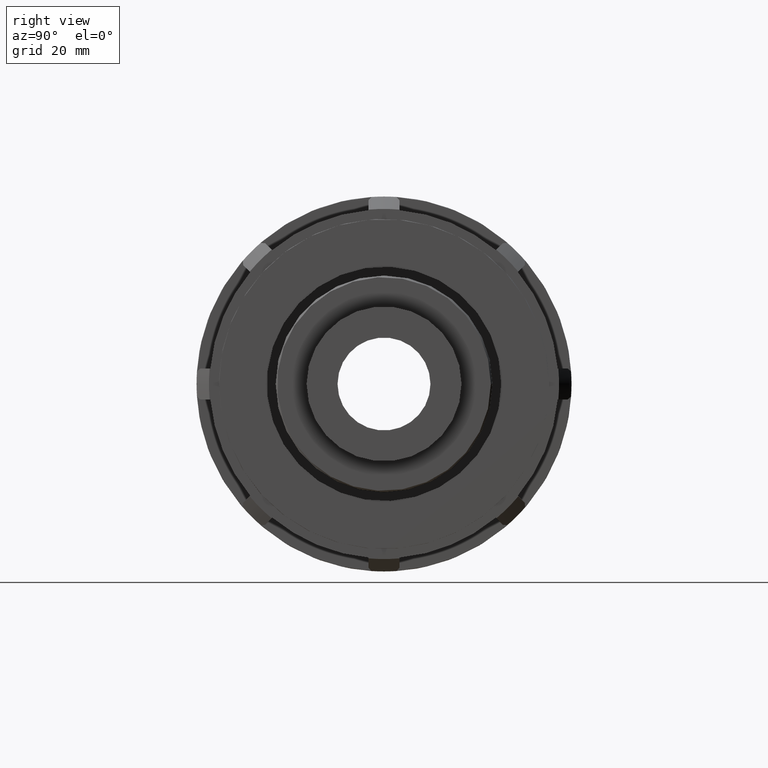
[diagram: clean part render]
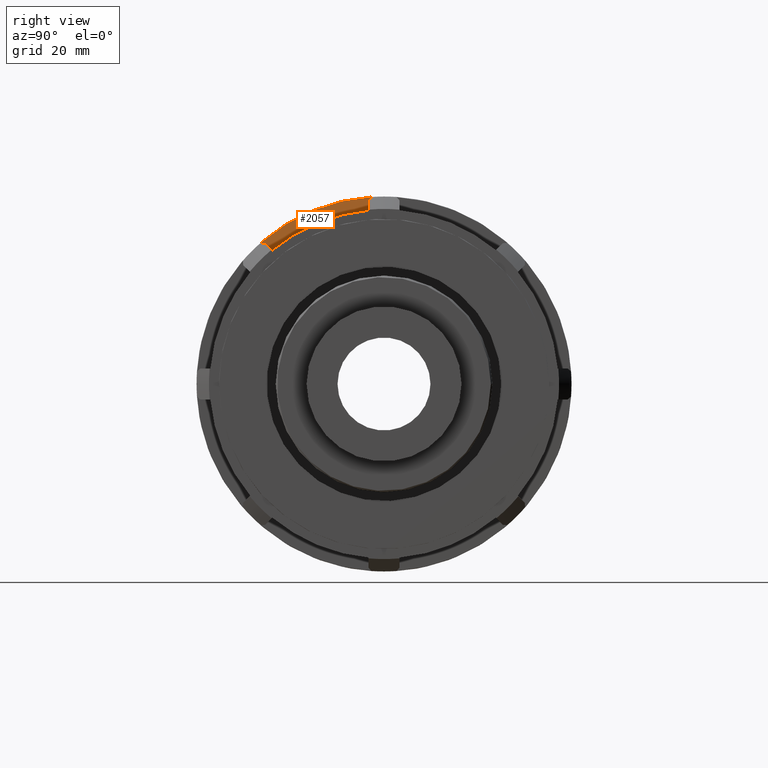
[diagram: same view with one face highlighted and labeled with its STEP entity id]
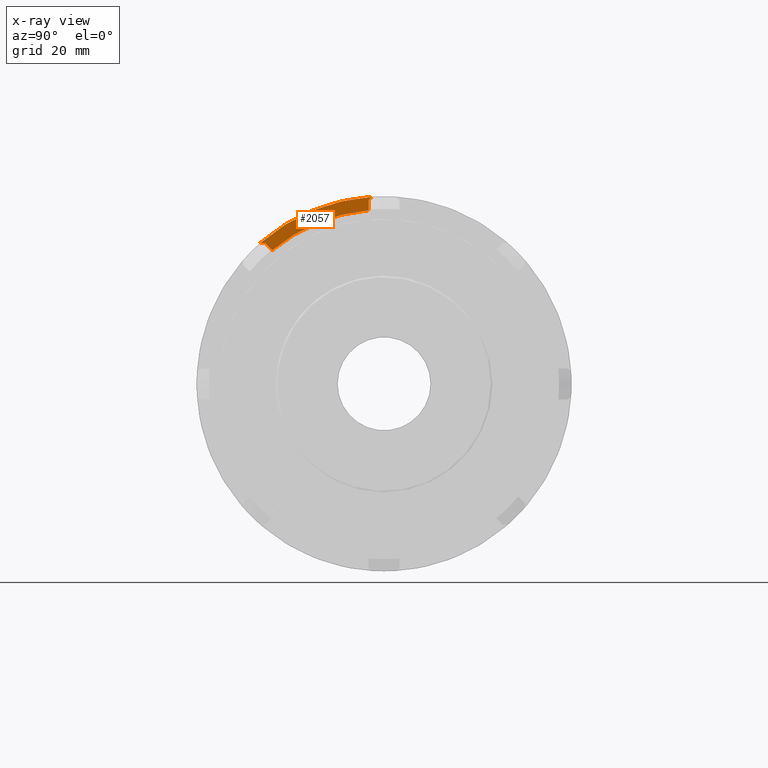
[diagram: x-ray of the same camera — body ghosted, the highlighted face saturated]
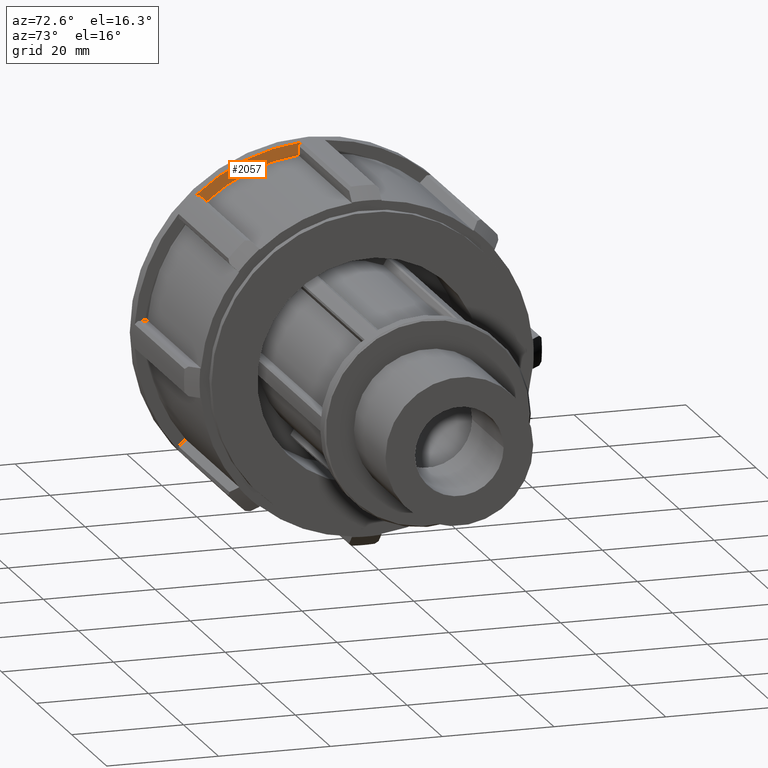
[diagram: same view with one face highlighted and labeled with its STEP entity id]
A machine part, right view. The second image highlights one B-rep face of the part: STEP entity #2057.
The next image is the same camera in x-ray: the body ghosted, the highlighted face saturated — about 0% of this face is hidden behind the body in this view.
A second angle (auxiliary view) of the same face is appended — the face is thin or edge-on in the first view.
In plain terms, the highlighted planar face has unit normal (1, 0, 0).
Its self-contained STEP definition (entity closure, byte-faithful):
#126=CIRCLE('',#2186,32.);
#135=CIRCLE('',#2229,29.76);
#274=FACE_OUTER_BOUND('',#396,.T.);
#396=EDGE_LOOP('',(#1738,#1739,#1740,#1741,#1742,#1743));
#592=LINE('',#3379,#772);
#600=LINE('',#3409,#780);
#619=LINE('',#3450,#799);
#620=LINE('',#3451,#800);
#772=VECTOR('',#2683,0.775182570537227);
#780=VECTOR('',#2701,1.71944788489031);
#799=VECTOR('',#2736,1.71944788489031);
#800=VECTOR('',#2737,0.775182570537229);
#919=VERTEX_POINT('',#3189);
#920=VERTEX_POINT('',#3191);
#969=VERTEX_POINT('',#3377);
#977=VERTEX_POINT('',#3407);
#990=VERTEX_POINT('',#3447);
#991=VERTEX_POINT('',#3449);
#1162=EDGE_CURVE('',#920,#919,#126,.T.);
#1235=EDGE_CURVE('',#969,#919,#592,.F.);
#1247=EDGE_CURVE('',#969,#977,#600,.T.);
#1266=EDGE_CURVE('',#990,#977,#135,.T.);
#1267=EDGE_CURVE('',#990,#991,#619,.T.);
#1268=EDGE_CURVE('',#920,#991,#620,.F.);
#1738=ORIENTED_EDGE('',*,*,#1247,.T.);
#1739=ORIENTED_EDGE('',*,*,#1266,.F.);
#1740=ORIENTED_EDGE('',*,*,#1267,.T.);
#1741=ORIENTED_EDGE('',*,*,#1268,.F.);
#1742=ORIENTED_EDGE('',*,*,#1162,.T.);
#1743=ORIENTED_EDGE('',*,*,#1235,.F.);
#1960=PLANE('',#2228);
#2057=ADVANCED_FACE('',(#274),#1960,.T.);
#2186=AXIS2_PLACEMENT_3D('',#3192,#2577,#2578);
#2228=AXIS2_PLACEMENT_3D('',#3446,#2732,#2733);
#2229=AXIS2_PLACEMENT_3D('',#3448,#2734,#2735);
#2577=DIRECTION('center_axis',(1.,0.,0.));
#2578=DIRECTION('ref_axis',(0.,0.,-1.));
#2683=DIRECTION('',(0.,0.999307052321563,-0.0372211657580506));
#2701=DIRECTION('',(0.,0.707106781186548,-0.707106781186547));
#2732=DIRECTION('center_axis',(1.,0.,0.));
#2733=DIRECTION('ref_axis',(0.,0.,-1.));
#2734=DIRECTION('center_axis',(1.,0.,0.));
#2735=DIRECTION('ref_axis',(0.,0.,-1.));
#2736=DIRECTION('',(0.,-1.43998400214477E-16,1.));
#2737=DIRECTION('',(0.,0.680297454472934,0.732936131895301));
#3189=CARTESIAN_POINT('',(2.58,-21.0810935714629,24.0746234411097));
#3191=CARTESIAN_POINT('',(2.58,-2.11674527051174,31.9299137089308));
#3192=CARTESIAN_POINT('Origin',(2.58000000000001,0.,0.));
#3377=CARTESIAN_POINT('',(2.58,-20.3064481618883,24.045770242159));
#3379=CARTESIAN_POINT('',(2.58,4.94562885988294,23.1052067362987));
#3407=CARTESIAN_POINT('',(2.58,-19.0906149025854,22.8299369828561));
#3409=CARTESIAN_POINT('',(2.58,-1.96535966488999,5.70468174516068));
#3446=CARTESIAN_POINT('Origin',(2.58,29.76,0.));
#3447=CARTESIAN_POINT('',(2.58000000000001,-2.6441,29.6423065092783));
#3448=CARTESIAN_POINT('Origin',(2.58000000000001,0.,0.));
#3449=CARTESIAN_POINT('',(2.58,-2.6441,31.3617543941686));
#3450=CARTESIAN_POINT('',(2.58,-2.6441,14.0177952545149));
#3451=CARTESIAN_POINT('',(2.58,-2.83259169106485,31.1586779751182));